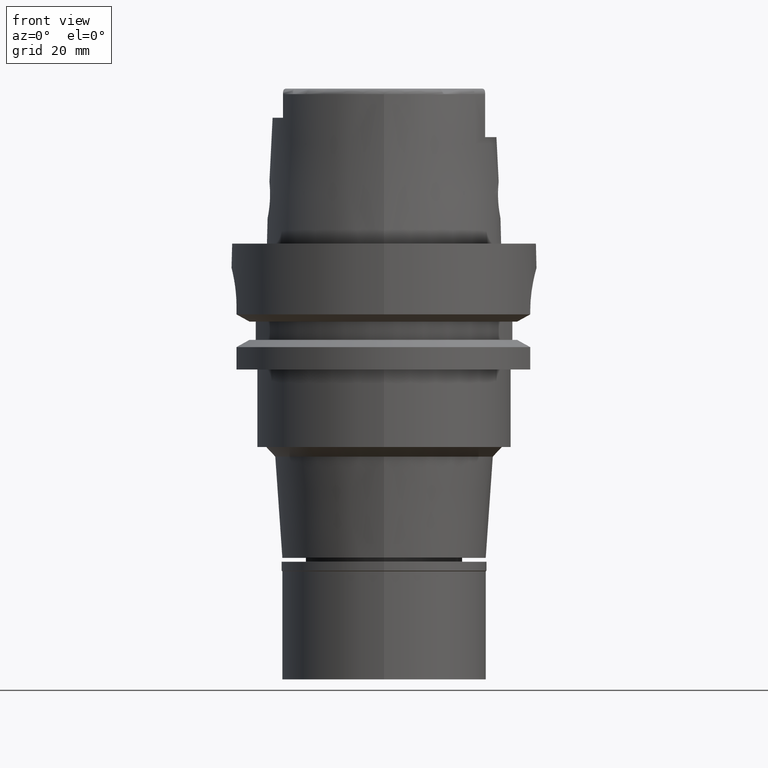
[diagram: clean part render]
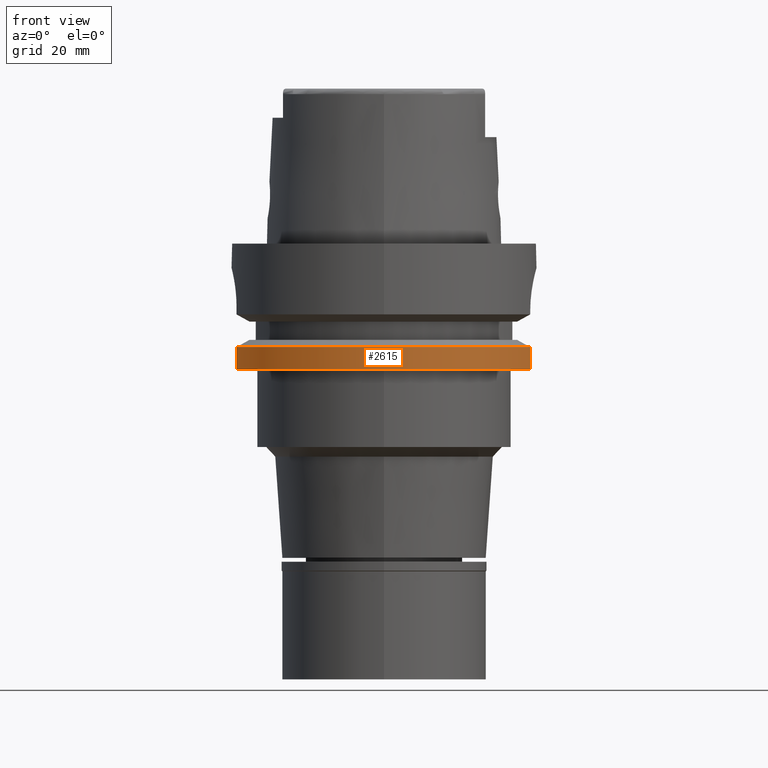
[diagram: same view with one face highlighted and labeled with its STEP entity id]
A machine part, front view. The second image highlights one B-rep face of the part: STEP entity #2615.
In plain terms, the highlighted cylindrical surface (partial cylindrical patch) has radius 31.5 mm, axis along (0, 0, 1).
Its self-contained STEP definition (entity closure, byte-faithful):
#122 = EDGE_CURVE ( 'NONE', #1308, #4139, #5229, .T. ) ;
#134 = CARTESIAN_POINT ( 'NONE',  ( -30.46719547316000032, -8.000000000000000000, -26.00000000000000000 ) ) ;
#350 = AXIS2_PLACEMENT_3D ( 'NONE', #2995, #3758, #2100 ) ;
#434 = EDGE_CURVE ( 'NONE', #1308, #5247, #4027, .T. ) ;
#782 = EDGE_CURVE ( 'NONE', #2433, #5247, #3156, .T. ) ;
#916 = CARTESIAN_POINT ( 'NONE',  ( -30.46719534853999889, -8.000000474596998146, -21.37750338325999877 ) ) ;
#1125 = CARTESIAN_POINT ( 'NONE',  ( -30.46719547316000032, -8.000000000000000000, -26.00000000000000000 ) ) ;
#1308 = VERTEX_POINT ( 'NONE', #1125 ) ;
#1317 = DIRECTION ( 'NONE',  ( 0.0000000000000000000, 1.000000000000000000, 0.0000000000000000000 ) ) ;
#1947 = ORIENTED_EDGE ( 'NONE', *, *, #122, .T. ) ;
#2100 = DIRECTION ( 'NONE',  ( 0.9583148474999051425, -0.2857142857143015191, 0.0000000000000000000 ) ) ;
#2228 = FACE_OUTER_BOUND ( 'NONE', #4173, .T. ) ;
#2275 = DIRECTION ( 'NONE',  ( 0.0000000000000000000, -1.000000000000000000, 0.0000000000000000000 ) ) ;
#2311 = CARTESIAN_POINT ( 'NONE',  ( 0.0000000000000000000, 0.0000000000000000000, 0.0000000000000000000 ) ) ;
#2433 = VERTEX_POINT ( 'NONE', #3378 ) ;
#2615 = ADVANCED_FACE ( 'NONE', ( #2228 ), #3154, .T. ) ;
#2727 = DIRECTION ( 'NONE',  ( 2.695902717555969691E-08, -1.026710475729988150E-07, 0.9999999999999943379 ) ) ;
#2975 = ORIENTED_EDGE ( 'NONE', *, *, #3582, .F. ) ;
#2995 = CARTESIAN_POINT ( 'NONE',  ( 0.0000000000000000000, 0.0000000000000000000, -21.37749907476000288 ) ) ;
#3040 = DIRECTION ( 'NONE',  ( 0.0000000000000000000, 0.0000000000000000000, 1.000000000000000000 ) ) ;
#3154 = CYLINDRICAL_SURFACE ( 'NONE', #4710, 31.50000000000000000 ) ;
#3156 = CIRCLE ( 'NONE', #350, 31.49999999999999645 ) ;
#3185 = CARTESIAN_POINT ( 'NONE',  ( 30.18691773983000104, -8.999999853830001229, -21.37749789580999860 ) ) ;
#3336 = CARTESIAN_POINT ( 'NONE',  ( 30.18691769625000276, -9.000000000000000000, -26.00000000000000000 ) ) ;
#3378 = CARTESIAN_POINT ( 'NONE',  ( 30.18691769625000276, -9.000000000000000000, -21.37749907476000288 ) ) ;
#3582 = EDGE_CURVE ( 'NONE', #2433, #4139, #3615, .T. ) ;
#3615 = LINE ( 'NONE', #3185, #4023 ) ;
#3758 = DIRECTION ( 'NONE',  ( 0.0000000000000000000, 0.0000000000000000000, -1.000000000000000000 ) ) ;
#4023 = VECTOR ( 'NONE', #4918, 1000.000000000000114 ) ;
#4027 = LINE ( 'NONE', #134, #5596 ) ;
#4070 = AXIS2_PLACEMENT_3D ( 'NONE', #5296, #4444, #2275 ) ;
#4139 = VERTEX_POINT ( 'NONE', #3336 ) ;
#4173 = EDGE_LOOP ( 'NONE', ( #5017, #1947, #2975, #4433 ) ) ;
#4433 = ORIENTED_EDGE ( 'NONE', *, *, #782, .T. ) ;
#4444 = DIRECTION ( 'NONE',  ( 0.0000000000000000000, 0.0000000000000000000, 1.000000000000000000 ) ) ;
#4710 = AXIS2_PLACEMENT_3D ( 'NONE', #2311, #3040, #1317 ) ;
#4918 = DIRECTION ( 'NONE',  ( -9.427772625840995370E-09, -3.162142192064998451E-08, -0.9999999999999994449 ) ) ;
#5017 = ORIENTED_EDGE ( 'NONE', *, *, #434, .F. ) ;
#5229 = CIRCLE ( 'NONE', #4070, 31.50000000000000000 ) ;
#5247 = VERTEX_POINT ( 'NONE', #916 ) ;
#5296 = CARTESIAN_POINT ( 'NONE',  ( 0.0000000000000000000, 0.0000000000000000000, -26.00000000000000000 ) ) ;
#5596 = VECTOR ( 'NONE', #2727, 1000.000000000000114 ) ;